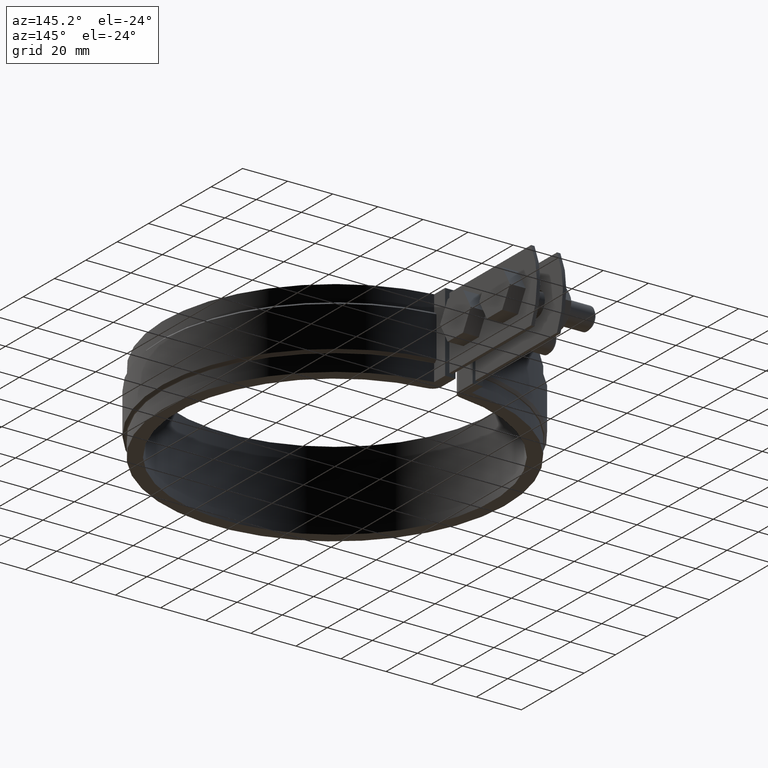
[diagram: clean part render]
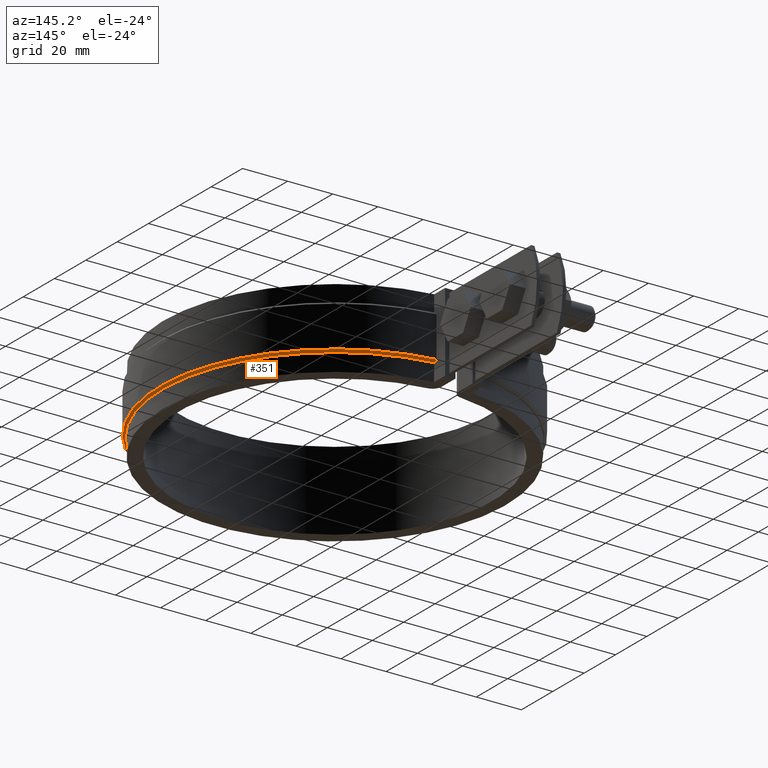
[diagram: same view with one face highlighted and labeled with its STEP entity id]
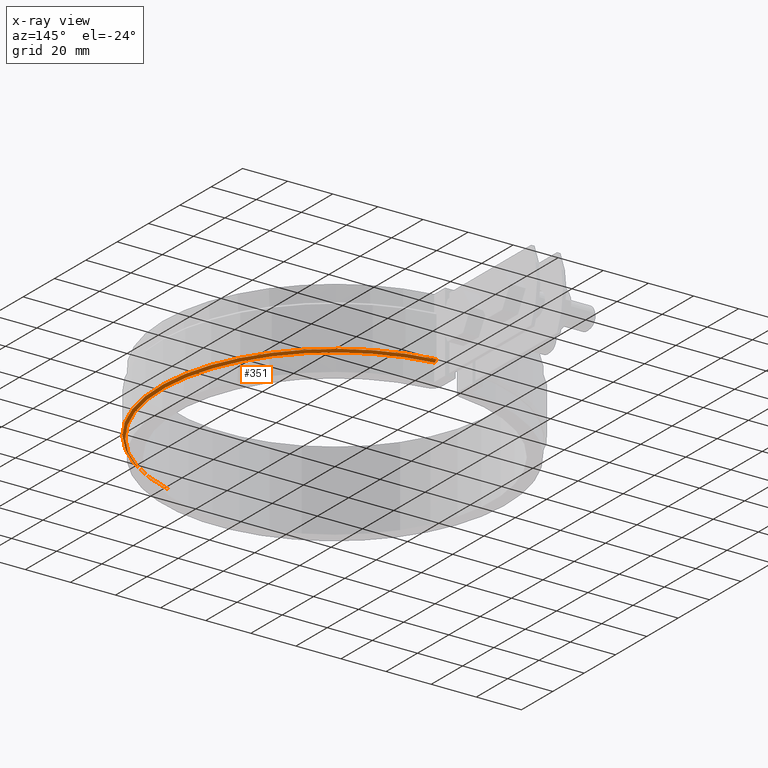
[diagram: x-ray of the same camera — body ghosted, the highlighted face saturated]
A machine part, auxiliary view. The second image highlights one B-rep face of the part: STEP entity #351.
The next image is the same camera in x-ray: the body ghosted, the highlighted face saturated — about 0% of this face is hidden behind the body in this view.
In plain terms, the highlighted conical surface has half-angle 45 deg.
Its self-contained STEP definition (entity closure, byte-faithful):
#351 = ADVANCED_FACE( '', ( #552 ), #553, .T. );
#552 = FACE_OUTER_BOUND( '', #1257, .T. );
#553 = CONICAL_SURFACE( '', #1258, 77.4000000000000, 0.785398163397450 );
#1257 = EDGE_LOOP( '', ( #3334, #3335, #3336, #3337 ) );
#1258 = AXIS2_PLACEMENT_3D( '', #3338, #3339, #3340 );
#3334 = ORIENTED_EDGE( '', *, *, #4753, .F. );
#3335 = ORIENTED_EDGE( '', *, *, #4754, .F. );
#3336 = ORIENTED_EDGE( '', *, *, #4755, .F. );
#3337 = ORIENTED_EDGE( '', *, *, #4756, .F. );
#3338 = CARTESIAN_POINT( '', ( 6.93889390390723E-015, -2.77555756156289E-014, -25.0000000000000 ) );
#3339 = DIRECTION( '', ( 0.000000000000000, 0.000000000000000, 1.00000000000000 ) );
#3340 = DIRECTION( '', ( 1.00000000000000, 0.000000000000000, 0.000000000000000 ) );
#4753 = EDGE_CURVE( '', #5267, #5268, #5269, .T. );
#4754 = EDGE_CURVE( '', #5270, #5267, #5271, .T. );
#4755 = EDGE_CURVE( '', #5272, #5270, #5273, .T. );
#4756 = EDGE_CURVE( '', #5268, #5272, #5274, .F. );
#5267 = VERTEX_POINT( '', #7350 );
#5268 = VERTEX_POINT( '', #7351 );
#5269 = B_SPLINE_CURVE_WITH_KNOTS( '', 3, ( #7352, #7353, #7354, #7355 ), .UNSPECIFIED., .F., .F., ( 4, 4 ), ( 706.997644533327, 706.999063009722 ), .UNSPECIFIED. );
#5270 = VERTEX_POINT( '', #7356 );
#5271 = CIRCLE( '', #7357, 77.4000000000000 );
#5272 = VERTEX_POINT( '', #7358 );
#5273 = LINE( '', #7359, #7360 );
#5274 = CIRCLE( '', #7361, 76.4000000000000 );
#7350 = CARTESIAN_POINT( '', ( 8.39999999999999, 76.9428359238207, -25.0000000000000 ) );
#7351 = CARTESIAN_POINT( '', ( 8.39999999999999, 75.9368158405394, -26.0000000000000 ) );
#7352 = CARTESIAN_POINT( '', ( 8.39999999999999, 76.9428359238076, -25.0000000000131 ) );
#7353 = CARTESIAN_POINT( '', ( 8.39999999999999, 76.6075088807814, -25.3333464296304 ) );
#7354 = CARTESIAN_POINT( '', ( 8.39999999999999, 76.2721690219995, -25.6666799374074 ) );
#7355 = CARTESIAN_POINT( '', ( 8.39999999999999, 75.9368158405359, -26.0000000000035 ) );
#7356 = CARTESIAN_POINT( '', ( 23.7104961870871, -73.6788461538462, -25.0000000000000 ) );
#7357 = AXIS2_PLACEMENT_3D( '', #8657, #8658, #8659 );
#7358 = CARTESIAN_POINT( '', ( 23.4041590270472, -72.7269230769231, -26.0000000000000 ) );
#7359 = CARTESIAN_POINT( '', ( 23.4041590270472, -72.7269230769231, -26.0000000000000 ) );
#7360 = VECTOR( '', #8660, 1000.00000000000 );
#7361 = AXIS2_PLACEMENT_3D( '', #8661, #8662, #8663 );
#8657 = CARTESIAN_POINT( '', ( 6.93889390390723E-015, -2.77555756156289E-014, -25.0000000000000 ) );
#8658 = DIRECTION( '', ( 0.000000000000000, 0.000000000000000, 1.00000000000000 ) );
#8659 = DIRECTION( '', ( 1.00000000000000, 0.000000000000000, 0.000000000000000 ) );
#8660 = DIRECTION( '', ( 0.216613083193632, -0.673111262860270, 0.707106781186548 ) );
#8661 = CARTESIAN_POINT( '', ( 6.93889390390723E-015, -2.77555756156289E-014, -26.0000000000000 ) );
#8662 = DIRECTION( '', ( 0.000000000000000, 0.000000000000000, 1.00000000000000 ) );
#8663 = DIRECTION( '', ( 1.00000000000000, 0.000000000000000, 0.000000000000000 ) );